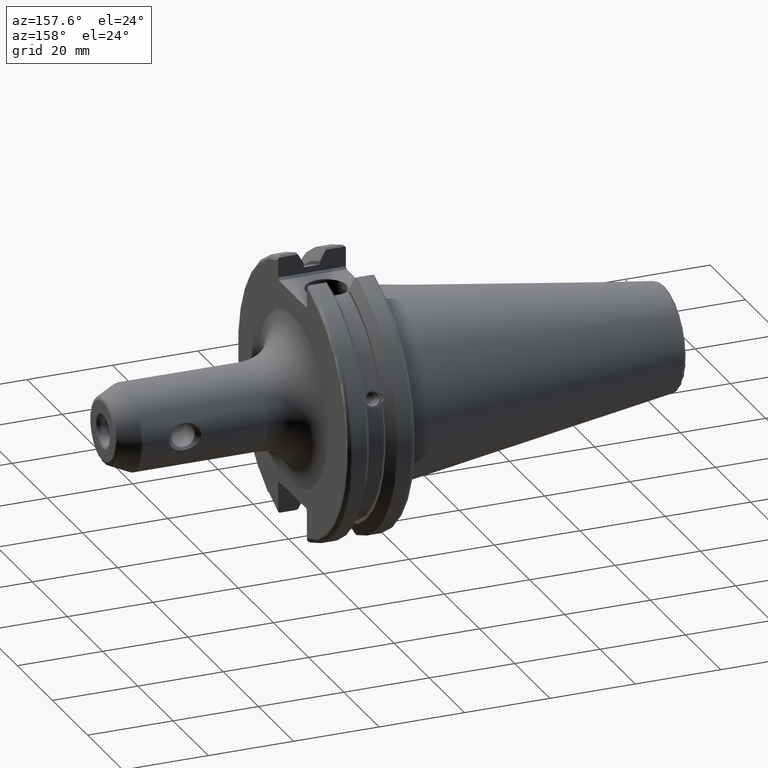
[diagram: clean part render]
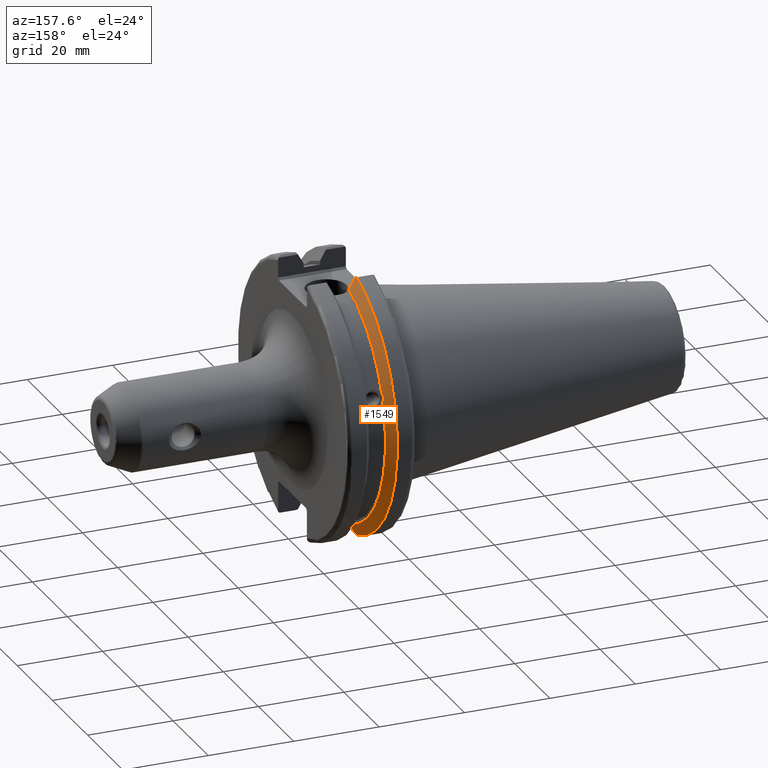
[diagram: same view with one face highlighted and labeled with its STEP entity id]
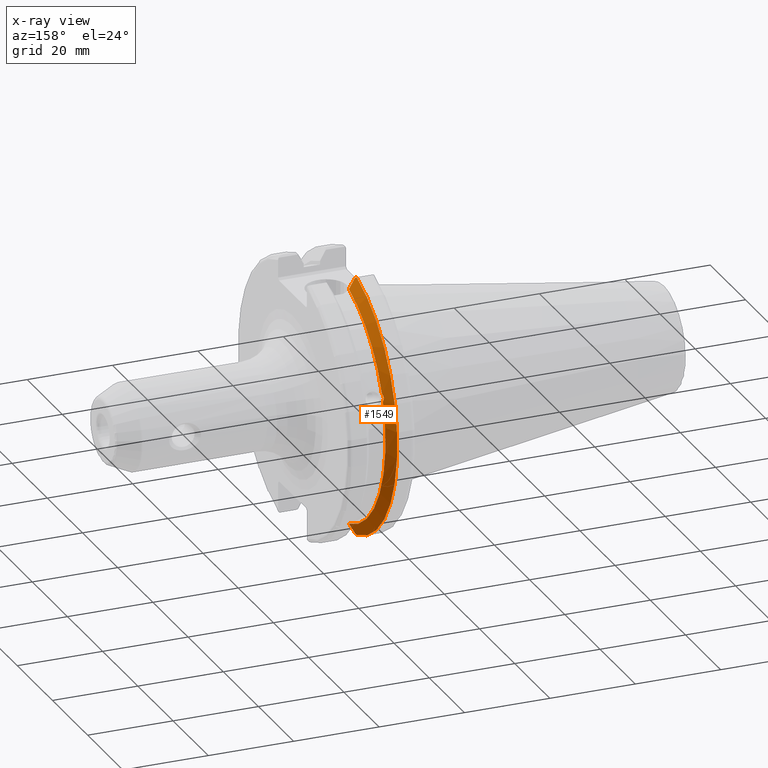
[diagram: x-ray of the same camera — body ghosted, the highlighted face saturated]
A machine part, auxiliary view. The second image highlights one B-rep face of the part: STEP entity #1549.
The next image is the same camera in x-ray: the body ghosted, the highlighted face saturated — about 0% of this face is hidden behind the body in this view.
In plain terms, the highlighted conical surface has half-angle 60 deg.
Its self-contained STEP definition (entity closure, byte-faithful):
#19=(
BOUNDED_CURVE()
B_SPLINE_CURVE(2,(#2776,#2777,#2778),.UNSPECIFIED.,.F.,.F.)
B_SPLINE_CURVE_WITH_KNOTS((3,3),(0.,0.276549142796136),.UNSPECIFIED.)
CURVE()
GEOMETRIC_REPRESENTATION_ITEM()
RATIONAL_B_SPLINE_CURVE((1.,1.00095203903316,1.00031614444813))
REPRESENTATION_ITEM('')
);
#20=(
BOUNDED_CURVE()
B_SPLINE_CURVE(2,(#2780,#2781,#2782),.UNSPECIFIED.,.F.,.F.)
B_SPLINE_CURVE_WITH_KNOTS((3,3),(0.,0.0639048713676127),.UNSPECIFIED.)
CURVE()
GEOMETRIC_REPRESENTATION_ITEM()
RATIONAL_B_SPLINE_CURVE((1.,1.00028444218281,1.00047644010571))
REPRESENTATION_ITEM('')
);
#21=(
BOUNDED_CURVE()
B_SPLINE_CURVE(2,(#2786,#2787,#2788),.UNSPECIFIED.,.F.,.F.)
B_SPLINE_CURVE_WITH_KNOTS((3,3),(0.329353533631191,0.393258405001024),
 .UNSPECIFIED.)
CURVE()
GEOMETRIC_REPRESENTATION_ITEM()
RATIONAL_B_SPLINE_CURVE((1.00047644010564,1.00028444218277,1.))
REPRESENTATION_ITEM('')
);
#22=(
BOUNDED_CURVE()
B_SPLINE_CURVE(2,(#2790,#2791,#2792),.UNSPECIFIED.,.F.,.F.)
B_SPLINE_CURVE_WITH_KNOTS((3,3),(0.0550586467391943,0.33160778953585),
 .UNSPECIFIED.)
CURVE()
GEOMETRIC_REPRESENTATION_ITEM()
RATIONAL_B_SPLINE_CURVE((1.00031614445155,1.00095203904346,1.))
REPRESENTATION_ITEM('')
);
#55=CONICAL_SURFACE('',#1716,30.3546886482472,1.0471975511966);
#78=B_SPLINE_CURVE_WITH_KNOTS('',3,(#2730,#2731,#2732,#2733,#2734,#2735,
#2736,#2737,#2738,#2739,#2740,#2741,#2742,#2743),.UNSPECIFIED.,.F.,.F.,
(4,2,2,2,2,2,4),(0.451995700189024,0.464547828547662,0.504528771685167,
0.544509714822672,0.584490657960177,0.624471601097682,0.637023729456319),
 .UNSPECIFIED.);
#397=FACE_OUTER_BOUND('',#493,.T.);
#493=EDGE_LOOP('',(#1227,#1228,#1229,#1230,#1231,#1232,#1233,#1234));
#594=CIRCLE('',#1717,28.9593772964944);
#595=CIRCLE('',#1718,31.75);
#596=CIRCLE('',#1719,28.9593772964944);
#715=VERTEX_POINT('',#2727);
#716=VERTEX_POINT('',#2729);
#720=VERTEX_POINT('',#2773);
#721=VERTEX_POINT('',#2775);
#722=VERTEX_POINT('',#2779);
#723=VERTEX_POINT('',#2783);
#724=VERTEX_POINT('',#2785);
#725=VERTEX_POINT('',#2789);
#904=EDGE_CURVE('',#716,#715,#78,.T.);
#909=EDGE_CURVE('',#720,#715,#594,.T.);
#910=EDGE_CURVE('',#720,#721,#19,.T.);
#911=EDGE_CURVE('',#722,#721,#20,.T.);
#912=EDGE_CURVE('',#722,#723,#595,.T.);
#913=EDGE_CURVE('',#724,#723,#21,.T.);
#914=EDGE_CURVE('',#724,#725,#22,.T.);
#915=EDGE_CURVE('',#716,#725,#596,.T.);
#1227=ORIENTED_EDGE('',*,*,#904,.T.);
#1228=ORIENTED_EDGE('',*,*,#909,.F.);
#1229=ORIENTED_EDGE('',*,*,#910,.T.);
#1230=ORIENTED_EDGE('',*,*,#911,.F.);
#1231=ORIENTED_EDGE('',*,*,#912,.T.);
#1232=ORIENTED_EDGE('',*,*,#913,.F.);
#1233=ORIENTED_EDGE('',*,*,#914,.T.);
#1234=ORIENTED_EDGE('',*,*,#915,.F.);
#1549=ADVANCED_FACE('',(#397),#55,.T.);
#1716=AXIS2_PLACEMENT_3D('',#2772,#2031,#2032);
#1717=AXIS2_PLACEMENT_3D('',#2774,#2033,#2034);
#1718=AXIS2_PLACEMENT_3D('',#2784,#2035,#2036);
#1719=AXIS2_PLACEMENT_3D('',#2793,#2037,#2038);
#2031=DIRECTION('center_axis',(-1.,0.,0.));
#2032=DIRECTION('ref_axis',(0.,1.,0.));
#2033=DIRECTION('center_axis',(1.,0.,0.));
#2034=DIRECTION('ref_axis',(0.,0.,-1.));
#2035=DIRECTION('center_axis',(1.,0.,0.));
#2036=DIRECTION('ref_axis',(0.,0.,-1.));
#2037=DIRECTION('center_axis',(1.,0.,0.));
#2038=DIRECTION('ref_axis',(0.,0.,-1.));
#2727=CARTESIAN_POINT('',(9.2191,27.4956274489925,9.09043478536247));
#2729=CARTESIAN_POINT('',(9.2191,26.9060914640648,10.7101715919071));
#2730=CARTESIAN_POINT('Ctrl Pts',(9.2191,26.9060914640648,10.7101715919071));
#2731=CARTESIAN_POINT('Ctrl Pts',(9.20497959280038,26.9406927482839,10.6893765730703));
#2732=CARTESIAN_POINT('Ctrl Pts',(9.19150701821434,26.9744191989197,10.6676007180674));
#2733=CARTESIAN_POINT('Ctrl Pts',(9.13811855884095,27.1113422433188,10.5723885976054));
#2734=CARTESIAN_POINT('Ctrl Pts',(9.09998029158246,27.2180531796526,10.4801333026531));
#2735=CARTESIAN_POINT('Ctrl Pts',(9.04778935539424,27.3968610665578,10.2639559818059));
#2736=CARTESIAN_POINT('Ctrl Pts',(9.0341,27.4684373304961,10.139516340139));
#2737=CARTESIAN_POINT('Ctrl Pts',(9.0341,27.559599249844,9.88905102521651));
#2738=CARTESIAN_POINT('Ctrl Pts',(9.04778935539424,27.5847569104122,9.74771639360671));
#2739=CARTESIAN_POINT('Ctrl Pts',(9.09998029158246,27.5867382255984,9.46717946402648));
#2740=CARTESIAN_POINT('Ctrl Pts',(9.13811855884095,27.5642934663232,9.32791534028656));
#2741=CARTESIAN_POINT('Ctrl Pts',(9.19150701821433,27.5206055003512,9.16696618806878));
#2742=CARTESIAN_POINT('Ctrl Pts',(9.20497959280038,27.5087667900418,9.12860597076219));
#2743=CARTESIAN_POINT('Ctrl Pts',(9.21909999999999,27.4956274489925,9.09043478536247));
#2772=CARTESIAN_POINT('Origin',(8.41351661546218,0.,0.));
#2773=CARTESIAN_POINT('',(9.2191,8.19,-27.7771386827498));
#2774=CARTESIAN_POINT('Origin',(9.2191,0.,0.));
#2775=CARTESIAN_POINT('',(7.88668530351257,8.19,-30.1755016258903));
#2776=CARTESIAN_POINT('Ctrl Pts',(9.2191,8.19,-27.7771386827498));
#2777=CARTESIAN_POINT('Ctrl Pts',(8.58046356152393,8.19,-28.9303689539705));
#2778=CARTESIAN_POINT('Ctrl Pts',(7.88668530351257,8.19,-30.1755016258903));
#2779=CARTESIAN_POINT('',(7.60793323092436,8.67204822802685,-30.5427254764662));
#2780=CARTESIAN_POINT('Ctrl Pts',(7.60793323092436,8.67204822802686,-30.5427254764662));
#2781=CARTESIAN_POINT('Ctrl Pts',(7.74899148121627,8.42917748262647,-30.357706789263));
#2782=CARTESIAN_POINT('Ctrl Pts',(7.88668530351257,8.19,-30.1755016258903));
#2783=CARTESIAN_POINT('',(7.60793323092436,8.67204822802685,30.5427254764662));
#2784=CARTESIAN_POINT('Origin',(7.60793323092436,0.,0.));
#2785=CARTESIAN_POINT('',(7.88668530351256,8.19,30.1755016258903));
#2786=CARTESIAN_POINT('Ctrl Pts',(7.88668530351256,8.19,30.1755016258903));
#2787=CARTESIAN_POINT('Ctrl Pts',(7.74899148121158,8.42917748263469,30.3577067892692));
#2788=CARTESIAN_POINT('Ctrl Pts',(7.60793323092436,8.67204822802686,30.5427254764662));
#2789=CARTESIAN_POINT('',(9.2191,8.19,27.7771386827498));
#2790=CARTESIAN_POINT('Ctrl Pts',(7.88668530351256,8.19,30.1755016258903));
#2791=CARTESIAN_POINT('Ctrl Pts',(8.58046356152345,8.19,28.9303689539713));
#2792=CARTESIAN_POINT('Ctrl Pts',(9.2191,8.19,27.7771386827498));
#2793=CARTESIAN_POINT('Origin',(9.2191,0.,0.));